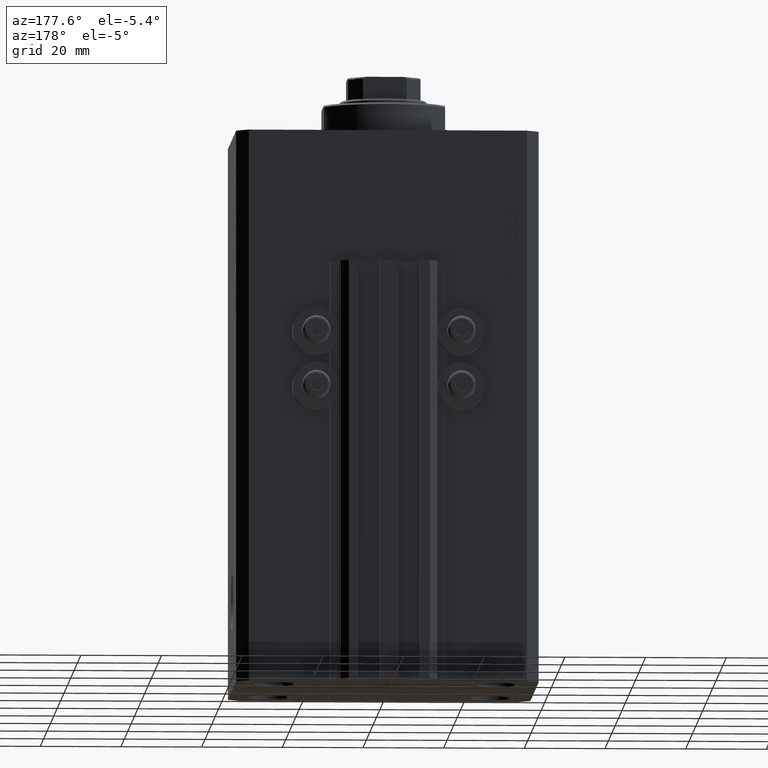
[diagram: clean part render]
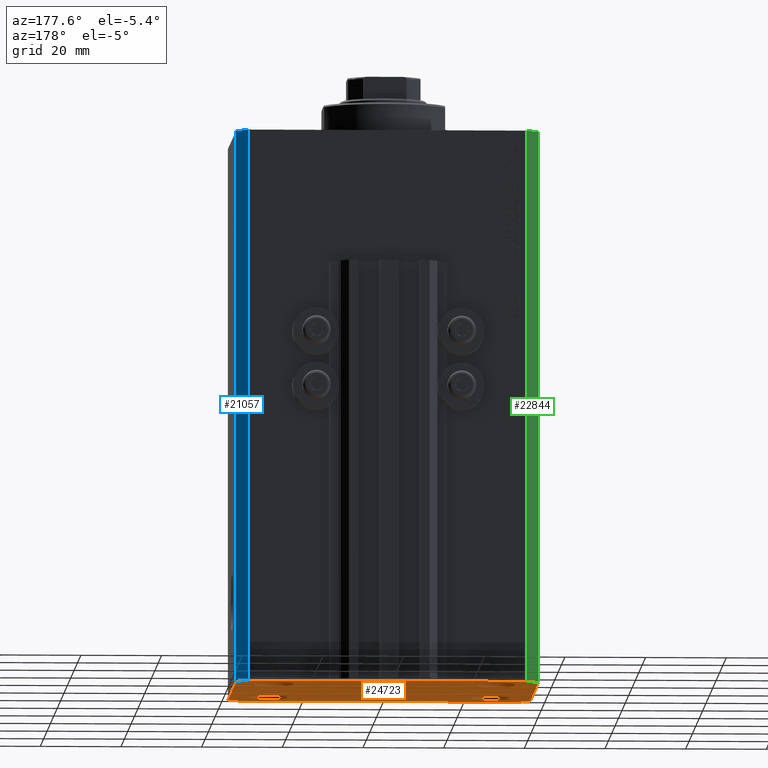
[diagram: same view with three faces highlighted in distinct colors, each labeled with its STEP entity id]
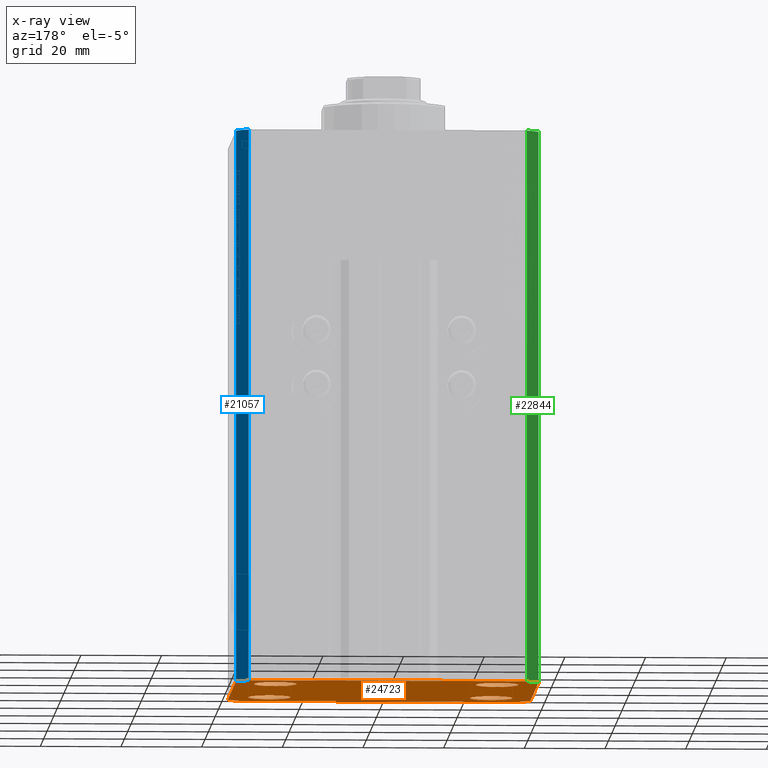
[diagram: x-ray of the same camera — body ghosted, the three highlighted faces saturated]
A machine part, auxiliary view with three faces highlighted in distinct colors.
The next image is the same camera in x-ray (body ghosted, the three faces saturated) — at least one of them is partly hidden behind the body in this view.
Their STEP definitions:

[orange] entity #24723 — the highlighted planar face has unit normal (0, 0, 1).
#38 = FACE_BOUND ( 'NONE', #7347, .T. ) ;
#56 = CIRCLE ( 'NONE', #25177, 5.250000000000000888 ) ;
#59 = VECTOR ( 'NONE', #43218, 1000.000000000000000 ) ;
#79 = CARTESIAN_POINT ( 'NONE',  ( -37.49999999999999289, -24.50000000000000000, -137.0000000000000000 ) ) ;
#93 = CARTESIAN_POINT ( 'NONE',  ( -37.49999999999999289, -24.50000000000000000, -137.0000000000000000 ) ) ;
#184 = ORIENTED_EDGE ( 'NONE', *, *, #15043, .F. ) ;
#544 = ORIENTED_EDGE ( 'NONE', *, *, #17501, .F. ) ;
#636 = DIRECTION ( 'NONE',  ( 1.000000000000000000, 0.000000000000000000, 0.000000000000000000 ) ) ;
#739 = CIRCLE ( 'NONE', #8368, 5.250000000000000888 ) ;
#829 = CIRCLE ( 'NONE', #16104, 5.250000000000000888 ) ;
#1359 = CARTESIAN_POINT ( 'NONE',  ( 37.50000000000051870, 24.49999999999995381, -137.0000000000000000 ) ) ;
#1758 = VERTEX_POINT ( 'NONE', #9111 ) ;
#2291 = VECTOR ( 'NONE', #23610, 1000.000000000000000 ) ;
#2555 = DIRECTION ( 'NONE',  ( 1.000000000000000000, 0.000000000000000000, 0.000000000000000000 ) ) ;
#2724 = DIRECTION ( 'NONE',  ( -0.7071067811865471286, -0.7071067811865479058, 0.000000000000000000 ) ) ;
#2834 = VERTEX_POINT ( 'NONE', #29853 ) ;
#3271 = VERTEX_POINT ( 'NONE', #12123 ) ;
#3572 = EDGE_CURVE ( 'NONE', #10444, #16591, #13808, .T. ) ;
#3633 = DIRECTION ( 'NONE',  ( -0.000000000000000000, -0.000000000000000000, -1.000000000000000000 ) ) ;
#3901 = CARTESIAN_POINT ( 'NONE',  ( 34.49999999999999289, -27.49999999999999645, -137.0000000000000000 ) ) ;
#4103 = FACE_BOUND ( 'NONE', #43582, .T. ) ;
#4811 = EDGE_LOOP ( 'NONE', ( #37578, #31229 ) ) ;
#5095 = DIRECTION ( 'NONE',  ( 1.000000000000000000, 0.000000000000000000, 0.000000000000000000 ) ) ;
#5934 = ORIENTED_EDGE ( 'NONE', *, *, #7816, .F. ) ;
#6321 = DIRECTION ( 'NONE',  ( -0.000000000000000000, -0.000000000000000000, -1.000000000000000000 ) ) ;
#6402 = CIRCLE ( 'NONE', #33075, 5.250000000000000888 ) ;
#6772 = LINE ( 'NONE', #24901, #42197 ) ;
#7347 = EDGE_LOOP ( 'NONE', ( #184, #12638 ) ) ;
#7670 = CIRCLE ( 'NONE', #15258, 5.250000000000000888 ) ;
#7816 = EDGE_CURVE ( 'NONE', #27886, #43687, #33664, .T. ) ;
#7978 = DIRECTION ( 'NONE',  ( -0.000000000000000000, -0.000000000000000000, -1.000000000000000000 ) ) ;
#8368 = AXIS2_PLACEMENT_3D ( 'NONE', #16347, #45456, #34003 ) ;
#8451 = CARTESIAN_POINT ( 'NONE',  ( 22.25000000000000000, 17.49999999999999289, -137.0000000000000000 ) ) ;
#8519 = ORIENTED_EDGE ( 'NONE', *, *, #42060, .F. ) ;
#9111 = CARTESIAN_POINT ( 'NONE',  ( -34.49999999999998579, -27.49999999999999645, -137.0000000000000000 ) ) ;
#9150 = AXIS2_PLACEMENT_3D ( 'NONE', #44718, #7978, #5095 ) ;
#9252 = LINE ( 'NONE', #28087, #29117 ) ;
#9549 = CARTESIAN_POINT ( 'NONE',  ( -34.49999999999999289, 27.50000000000000000, -137.0000000000000000 ) ) ;
#9557 = EDGE_CURVE ( 'NONE', #34750, #32043, #45189, .T. ) ;
#9704 = CARTESIAN_POINT ( 'NONE',  ( 32.74999999999999289, -17.50000000000000000, -137.0000000000000000 ) ) ;
#9711 = CARTESIAN_POINT ( 'NONE',  ( 34.50000000000056843, 27.50000000000000000, -137.0000000000000000 ) ) ;
#10334 = VERTEX_POINT ( 'NONE', #40689 ) ;
#10444 = VERTEX_POINT ( 'NONE', #38279 ) ;
#10802 = ORIENTED_EDGE ( 'NONE', *, *, #40320, .F. ) ;
#11252 = VECTOR ( 'NONE', #40354, 1000.000000000000000 ) ;
#11699 = ORIENTED_EDGE ( 'NONE', *, *, #19651, .F. ) ;
#11811 = DIRECTION ( 'NONE',  ( 1.000000000000000000, 0.000000000000000000, 0.000000000000000000 ) ) ;
#12123 = CARTESIAN_POINT ( 'NONE',  ( -32.75000000000000000, 17.49999999999999645, -137.0000000000000000 ) ) ;
#12638 = ORIENTED_EDGE ( 'NONE', *, *, #36708, .F. ) ;
#12780 = DIRECTION ( 'NONE',  ( 1.000000000000000000, 0.000000000000000000, 0.000000000000000000 ) ) ;
#13659 = CARTESIAN_POINT ( 'NONE',  ( 27.49999999999999289, -17.50000000000000000, -137.0000000000000000 ) ) ;
#13808 = CIRCLE ( 'NONE', #40481, 5.250000000000000888 ) ;
#14605 = DIRECTION ( 'NONE',  ( -0.000000000000000000, -0.000000000000000000, -1.000000000000000000 ) ) ;
#14701 = EDGE_CURVE ( 'NONE', #3271, #33704, #7670, .T. ) ;
#14837 = CARTESIAN_POINT ( 'NONE',  ( 34.50000000000056843, 27.50000000000000000, -137.0000000000000000 ) ) ;
#14930 = AXIS2_PLACEMENT_3D ( 'NONE', #29952, #44510, #11811 ) ;
#15043 = EDGE_CURVE ( 'NONE', #33922, #10334, #28196, .T. ) ;
#15258 = AXIS2_PLACEMENT_3D ( 'NONE', #19012, #43850, #636 ) ;
#16104 = AXIS2_PLACEMENT_3D ( 'NONE', #13659, #3633, #39903 ) ;
#16204 = ORIENTED_EDGE ( 'NONE', *, *, #34709, .F. ) ;
#16347 = CARTESIAN_POINT ( 'NONE',  ( 27.50000000000000000, 17.49999999999999289, -137.0000000000000000 ) ) ;
#16591 = VERTEX_POINT ( 'NONE', #40516 ) ;
#17296 = DIRECTION ( 'NONE',  ( 1.000000000000000000, 0.000000000000000000, 0.000000000000000000 ) ) ;
#17501 = EDGE_CURVE ( 'NONE', #2834, #37799, #739, .T. ) ;
#17717 = FACE_BOUND ( 'NONE', #4811, .T. ) ;
#18171 = CARTESIAN_POINT ( 'NONE',  ( -22.25000000000000000, 17.49999999999999645, -137.0000000000000000 ) ) ;
#18187 = DIRECTION ( 'NONE',  ( 1.000000000000000000, 0.000000000000000000, -0.000000000000000000 ) ) ;
#19012 = CARTESIAN_POINT ( 'NONE',  ( -27.50000000000000000, 17.49999999999999645, -137.0000000000000000 ) ) ;
#19651 = EDGE_CURVE ( 'NONE', #32043, #38399, #35816, .T. ) ;
#19885 = CARTESIAN_POINT ( 'NONE',  ( 34.49999999999999289, -27.49999999999999645, -137.0000000000000000 ) ) ;
#21756 = FACE_OUTER_BOUND ( 'NONE', #33702, .T. ) ;
#22225 = CARTESIAN_POINT ( 'NONE',  ( 0.000000000000000000, 0.000000000000000000, -137.0000000000000000 ) ) ;
#23610 = DIRECTION ( 'NONE',  ( 0.7071067811865483499, -0.7071067811865466846, 0.000000000000000000 ) ) ;
#23685 = VECTOR ( 'NONE', #46472, 1000.000000000000114 ) ;
#24723 = ADVANCED_FACE ( 'NONE', ( #17717, #38, #4103, #28682, #21756 ), #40137, .F. ) ;
#24901 = CARTESIAN_POINT ( 'NONE',  ( -34.49999999999999289, 27.50000000000000000, -137.0000000000000000 ) ) ;
#25177 = AXIS2_PLACEMENT_3D ( 'NONE', #39004, #6321, #17296 ) ;
#25300 = ORIENTED_EDGE ( 'NONE', *, *, #36330, .F. ) ;
#25587 = CIRCLE ( 'NONE', #14930, 5.250000000000000888 ) ;
#25626 = EDGE_LOOP ( 'NONE', ( #25300, #27514 ) ) ;
#27133 = CARTESIAN_POINT ( 'NONE',  ( 37.49999999999999289, -24.50000000000000000, -137.0000000000000000 ) ) ;
#27331 = DIRECTION ( 'NONE',  ( -0.000000000000000000, -0.000000000000000000, -1.000000000000000000 ) ) ;
#27458 = CARTESIAN_POINT ( 'NONE',  ( -37.49999999999999289, 24.50000000000000000, -137.0000000000000000 ) ) ;
#27514 = ORIENTED_EDGE ( 'NONE', *, *, #14701, .F. ) ;
#27886 = VERTEX_POINT ( 'NONE', #9711 ) ;
#28087 = CARTESIAN_POINT ( 'NONE',  ( -34.49999999999998579, -27.49999999999999645, -137.0000000000000000 ) ) ;
#28162 = CARTESIAN_POINT ( 'NONE',  ( -37.49999999999999289, 24.50000000000000000, -137.0000000000000000 ) ) ;
#28196 = CIRCLE ( 'NONE', #9150, 5.250000000000000888 ) ;
#28290 = VECTOR ( 'NONE', #42017, 1000.000000000000000 ) ;
#28412 = EDGE_CURVE ( 'NONE', #16591, #10444, #6402, .T. ) ;
#28682 = FACE_BOUND ( 'NONE', #25626, .T. ) ;
#29117 = VECTOR ( 'NONE', #2555, 1000.000000000000000 ) ;
#29853 = CARTESIAN_POINT ( 'NONE',  ( 32.75000000000000000, 17.49999999999999289, -137.0000000000000000 ) ) ;
#29952 = CARTESIAN_POINT ( 'NONE',  ( 27.50000000000000000, 17.49999999999999289, -137.0000000000000000 ) ) ;
#30878 = ORIENTED_EDGE ( 'NONE', *, *, #31052, .F. ) ;
#31052 = EDGE_CURVE ( 'NONE', #43687, #42079, #6772, .T. ) ;
#31099 = VECTOR ( 'NONE', #38251, 1000.000000000000114 ) ;
#31229 = ORIENTED_EDGE ( 'NONE', *, *, #28412, .F. ) ;
#31914 = LINE ( 'NONE', #39539, #23685 ) ;
#32043 = VERTEX_POINT ( 'NONE', #27133 ) ;
#32254 = CARTESIAN_POINT ( 'NONE',  ( 37.49999999999999289, -24.50000000000000000, -137.0000000000000000 ) ) ;
#32733 = CARTESIAN_POINT ( 'NONE',  ( -27.49999999999999289, -17.50000000000000000, -137.0000000000000000 ) ) ;
#32735 = DIRECTION ( 'NONE',  ( 0.000000000000000000, 0.000000000000000000, 1.000000000000000000 ) ) ;
#33075 = AXIS2_PLACEMENT_3D ( 'NONE', #32733, #14605, #40365 ) ;
#33213 = EDGE_CURVE ( 'NONE', #37799, #2834, #25587, .T. ) ;
#33534 = ORIENTED_EDGE ( 'NONE', *, *, #42893, .F. ) ;
#33664 = LINE ( 'NONE', #14837, #11252 ) ;
#33702 = EDGE_LOOP ( 'NONE', ( #5934, #10802, #11699, #44574, #33534, #16204, #8519, #30878 ) ) ;
#33704 = VERTEX_POINT ( 'NONE', #18171 ) ;
#33922 = VERTEX_POINT ( 'NONE', #9704 ) ;
#34003 = DIRECTION ( 'NONE',  ( 1.000000000000000000, 0.000000000000000000, 0.000000000000000000 ) ) ;
#34709 = EDGE_CURVE ( 'NONE', #43328, #1758, #41290, .T. ) ;
#34750 = VERTEX_POINT ( 'NONE', #3901 ) ;
#35816 = LINE ( 'NONE', #32254, #59 ) ;
#36330 = EDGE_CURVE ( 'NONE', #33704, #3271, #56, .T. ) ;
#36708 = EDGE_CURVE ( 'NONE', #10334, #33922, #829, .T. ) ;
#37578 = ORIENTED_EDGE ( 'NONE', *, *, #3572, .F. ) ;
#37799 = VERTEX_POINT ( 'NONE', #8451 ) ;
#38251 = DIRECTION ( 'NONE',  ( 0.7071067811865474617, 0.7071067811865474617, 0.000000000000000000 ) ) ;
#38279 = CARTESIAN_POINT ( 'NONE',  ( -22.24999999999999289, -17.50000000000000000, -137.0000000000000000 ) ) ;
#38399 = VERTEX_POINT ( 'NONE', #1359 ) ;
#39004 = CARTESIAN_POINT ( 'NONE',  ( -27.50000000000000000, 17.49999999999999645, -137.0000000000000000 ) ) ;
#39160 = ORIENTED_EDGE ( 'NONE', *, *, #33213, .F. ) ;
#39539 = CARTESIAN_POINT ( 'NONE',  ( 37.50000000000051870, 24.49999999999995381, -137.0000000000000000 ) ) ;
#39903 = DIRECTION ( 'NONE',  ( 1.000000000000000000, 0.000000000000000000, 0.000000000000000000 ) ) ;
#40137 = PLANE ( 'NONE',  #45905 ) ;
#40320 = EDGE_CURVE ( 'NONE', #38399, #27886, #31914, .T. ) ;
#40354 = DIRECTION ( 'NONE',  ( -1.000000000000000000, 0.000000000000000000, 0.000000000000000000 ) ) ;
#40365 = DIRECTION ( 'NONE',  ( 1.000000000000000000, 0.000000000000000000, 0.000000000000000000 ) ) ;
#40481 = AXIS2_PLACEMENT_3D ( 'NONE', #45705, #27331, #12780 ) ;
#40516 = CARTESIAN_POINT ( 'NONE',  ( -32.74999999999999289, -17.50000000000000000, -137.0000000000000000 ) ) ;
#40689 = CARTESIAN_POINT ( 'NONE',  ( 22.24999999999999289, -17.50000000000000000, -137.0000000000000000 ) ) ;
#41290 = LINE ( 'NONE', #79, #2291 ) ;
#42017 = DIRECTION ( 'NONE',  ( 0.000000000000000000, -1.000000000000000000, 0.000000000000000000 ) ) ;
#42060 = EDGE_CURVE ( 'NONE', #42079, #43328, #46309, .T. ) ;
#42079 = VERTEX_POINT ( 'NONE', #27458 ) ;
#42197 = VECTOR ( 'NONE', #2724, 1000.000000000000000 ) ;
#42893 = EDGE_CURVE ( 'NONE', #1758, #34750, #9252, .T. ) ;
#43218 = DIRECTION ( 'NONE',  ( 1.076236605503979380E-14, 1.000000000000000000, 0.000000000000000000 ) ) ;
#43328 = VERTEX_POINT ( 'NONE', #93 ) ;
#43582 = EDGE_LOOP ( 'NONE', ( #544, #39160 ) ) ;
#43687 = VERTEX_POINT ( 'NONE', #9549 ) ;
#43850 = DIRECTION ( 'NONE',  ( -0.000000000000000000, -0.000000000000000000, -1.000000000000000000 ) ) ;
#44510 = DIRECTION ( 'NONE',  ( -0.000000000000000000, -0.000000000000000000, -1.000000000000000000 ) ) ;
#44574 = ORIENTED_EDGE ( 'NONE', *, *, #9557, .F. ) ;
#44718 = CARTESIAN_POINT ( 'NONE',  ( 27.49999999999999289, -17.50000000000000000, -137.0000000000000000 ) ) ;
#45189 = LINE ( 'NONE', #19885, #31099 ) ;
#45456 = DIRECTION ( 'NONE',  ( -0.000000000000000000, -0.000000000000000000, -1.000000000000000000 ) ) ;
#45705 = CARTESIAN_POINT ( 'NONE',  ( -27.49999999999999289, -17.50000000000000000, -137.0000000000000000 ) ) ;
#45905 = AXIS2_PLACEMENT_3D ( 'NONE', #22225, #32735, #18187 ) ;
#46309 = LINE ( 'NONE', #28162, #28290 ) ;
#46472 = DIRECTION ( 'NONE',  ( -0.7071067811865364705, 0.7071067811865584529, 0.000000000000000000 ) ) ;

[blue] entity #21057 — the highlighted planar face has unit normal (0.7071, 0.7071, 0).
#545 = EDGE_CURVE ( 'NONE', #9805, #18679, #29561, .T. ) ;
#1359 = CARTESIAN_POINT ( 'NONE',  ( 37.50000000000051870, 24.49999999999995381, -137.0000000000000000 ) ) ;
#1947 = CARTESIAN_POINT ( 'NONE',  ( 37.50000000000051870, 24.49999999999995381, 0.000000000000000000 ) ) ;
#2819 = DIRECTION ( 'NONE',  ( 0.7071067811865584529, 0.7071067811865365815, -0.000000000000000000 ) ) ;
#3392 = ORIENTED_EDGE ( 'NONE', *, *, #12879, .F. ) ;
#3770 = CARTESIAN_POINT ( 'NONE',  ( 34.50000000000056843, 27.50000000000000000, -137.0000000000000000 ) ) ;
#5788 = ORIENTED_EDGE ( 'NONE', *, *, #545, .F. ) ;
#6407 = CARTESIAN_POINT ( 'NONE',  ( 37.50000000000051870, 24.49999999999995381, -137.0000000000000000 ) ) ;
#6639 = FACE_OUTER_BOUND ( 'NONE', #25362, .T. ) ;
#7357 = DIRECTION ( 'NONE',  ( 0.000000000000000000, 0.000000000000000000, 1.000000000000000000 ) ) ;
#8328 = VECTOR ( 'NONE', #7357, 1000.000000000000000 ) ;
#9711 = CARTESIAN_POINT ( 'NONE',  ( 34.50000000000056843, 27.50000000000000000, -137.0000000000000000 ) ) ;
#9805 = VERTEX_POINT ( 'NONE', #1947 ) ;
#11188 = CARTESIAN_POINT ( 'NONE',  ( 37.50000000000051870, 24.49999999999995381, 0.000000000000000000 ) ) ;
#12879 = EDGE_CURVE ( 'NONE', #38399, #9805, #24903, .T. ) ;
#13567 = DIRECTION ( 'NONE',  ( -0.7071067811865365815, 0.7071067811865584529, 0.000000000000000000 ) ) ;
#13952 = CARTESIAN_POINT ( 'NONE',  ( 37.50000000000051870, 24.49999999999995381, -137.0000000000000000 ) ) ;
#16551 = EDGE_CURVE ( 'NONE', #27886, #18679, #40747, .T. ) ;
#16904 = PLANE ( 'NONE',  #23692 ) ;
#18679 = VERTEX_POINT ( 'NONE', #34292 ) ;
#19763 = VECTOR ( 'NONE', #31616, 1000.000000000000000 ) ;
#21057 = ADVANCED_FACE ( 'NONE', ( #6639 ), #16904, .T. ) ;
#23685 = VECTOR ( 'NONE', #46472, 1000.000000000000114 ) ;
#23692 = AXIS2_PLACEMENT_3D ( 'NONE', #6407, #2819, #13567 ) ;
#23841 = VECTOR ( 'NONE', #40765, 1000.000000000000114 ) ;
#24903 = LINE ( 'NONE', #13952, #19763 ) ;
#25362 = EDGE_LOOP ( 'NONE', ( #5788, #3392, #28428, #33878 ) ) ;
#27886 = VERTEX_POINT ( 'NONE', #9711 ) ;
#28428 = ORIENTED_EDGE ( 'NONE', *, *, #40320, .T. ) ;
#29561 = LINE ( 'NONE', #11188, #23841 ) ;
#31616 = DIRECTION ( 'NONE',  ( 0.000000000000000000, 0.000000000000000000, 1.000000000000000000 ) ) ;
#31914 = LINE ( 'NONE', #39539, #23685 ) ;
#33878 = ORIENTED_EDGE ( 'NONE', *, *, #16551, .T. ) ;
#34292 = CARTESIAN_POINT ( 'NONE',  ( 34.50000000000056843, 27.50000000000000000, 0.000000000000000000 ) ) ;
#38399 = VERTEX_POINT ( 'NONE', #1359 ) ;
#39539 = CARTESIAN_POINT ( 'NONE',  ( 37.50000000000051870, 24.49999999999995381, -137.0000000000000000 ) ) ;
#40320 = EDGE_CURVE ( 'NONE', #38399, #27886, #31914, .T. ) ;
#40747 = LINE ( 'NONE', #3770, #8328 ) ;
#40765 = DIRECTION ( 'NONE',  ( -0.7071067811865364705, 0.7071067811865584529, 0.000000000000000000 ) ) ;
#46472 = DIRECTION ( 'NONE',  ( -0.7071067811865364705, 0.7071067811865584529, 0.000000000000000000 ) ) ;

[green] entity #22844 — the highlighted planar face has unit normal (-0.7071, 0.7071, 0).
#2187 = CARTESIAN_POINT ( 'NONE',  ( -34.49999999999999289, 27.50000000000000000, 0.000000000000000000 ) ) ;
#2471 = EDGE_CURVE ( 'NONE', #43687, #28534, #32145, .T. ) ;
#2689 = EDGE_CURVE ( 'NONE', #28534, #18158, #26311, .T. ) ;
#2724 = DIRECTION ( 'NONE',  ( -0.7071067811865471286, -0.7071067811865479058, 0.000000000000000000 ) ) ;
#3906 = CARTESIAN_POINT ( 'NONE',  ( -34.49999999999999289, 27.50000000000000000, -137.0000000000000000 ) ) ;
#6772 = LINE ( 'NONE', #24901, #42197 ) ;
#7708 = CARTESIAN_POINT ( 'NONE',  ( -37.49999999999999289, 24.50000000000000000, -137.0000000000000000 ) ) ;
#9239 = DIRECTION ( 'NONE',  ( -0.7071067811865480168, 0.7071067811865471286, 0.000000000000000000 ) ) ;
#9549 = CARTESIAN_POINT ( 'NONE',  ( -34.49999999999999289, 27.50000000000000000, -137.0000000000000000 ) ) ;
#14398 = ORIENTED_EDGE ( 'NONE', *, *, #19400, .T. ) ;
#14646 = AXIS2_PLACEMENT_3D ( 'NONE', #22836, #9239, #26908 ) ;
#15268 = ORIENTED_EDGE ( 'NONE', *, *, #2689, .F. ) ;
#18158 = VERTEX_POINT ( 'NONE', #36290 ) ;
#19109 = VECTOR ( 'NONE', #25833, 1000.000000000000000 ) ;
#19400 = EDGE_CURVE ( 'NONE', #42079, #18158, #22016, .T. ) ;
#19448 = VECTOR ( 'NONE', #23441, 1000.000000000000000 ) ;
#22016 = LINE ( 'NONE', #7708, #19109 ) ;
#22836 = CARTESIAN_POINT ( 'NONE',  ( -34.49999999999999289, 27.50000000000000000, -137.0000000000000000 ) ) ;
#22844 = ADVANCED_FACE ( 'NONE', ( #34066 ), #27608, .T. ) ;
#23441 = DIRECTION ( 'NONE',  ( -0.7071067811865471286, -0.7071067811865479058, 0.000000000000000000 ) ) ;
#23934 = ORIENTED_EDGE ( 'NONE', *, *, #2471, .F. ) ;
#24901 = CARTESIAN_POINT ( 'NONE',  ( -34.49999999999999289, 27.50000000000000000, -137.0000000000000000 ) ) ;
#25833 = DIRECTION ( 'NONE',  ( 0.000000000000000000, 0.000000000000000000, 1.000000000000000000 ) ) ;
#26311 = LINE ( 'NONE', #2187, #19448 ) ;
#26908 = DIRECTION ( 'NONE',  ( -0.7071067811865470176, -0.7071067811865479058, 0.000000000000000000 ) ) ;
#27458 = CARTESIAN_POINT ( 'NONE',  ( -37.49999999999999289, 24.50000000000000000, -137.0000000000000000 ) ) ;
#27608 = PLANE ( 'NONE',  #14646 ) ;
#28534 = VERTEX_POINT ( 'NONE', #35021 ) ;
#29230 = EDGE_LOOP ( 'NONE', ( #15268, #23934, #31293, #14398 ) ) ;
#31052 = EDGE_CURVE ( 'NONE', #43687, #42079, #6772, .T. ) ;
#31293 = ORIENTED_EDGE ( 'NONE', *, *, #31052, .T. ) ;
#32145 = LINE ( 'NONE', #3906, #42305 ) ;
#34066 = FACE_OUTER_BOUND ( 'NONE', #29230, .T. ) ;
#35002 = DIRECTION ( 'NONE',  ( 0.000000000000000000, 0.000000000000000000, 1.000000000000000000 ) ) ;
#35021 = CARTESIAN_POINT ( 'NONE',  ( -34.49999999999999289, 27.50000000000000000, 0.000000000000000000 ) ) ;
#36290 = CARTESIAN_POINT ( 'NONE',  ( -37.49999999999999289, 24.50000000000000000, 0.000000000000000000 ) ) ;
#42079 = VERTEX_POINT ( 'NONE', #27458 ) ;
#42197 = VECTOR ( 'NONE', #2724, 1000.000000000000000 ) ;
#42305 = VECTOR ( 'NONE', #35002, 1000.000000000000000 ) ;
#43687 = VERTEX_POINT ( 'NONE', #9549 ) ;